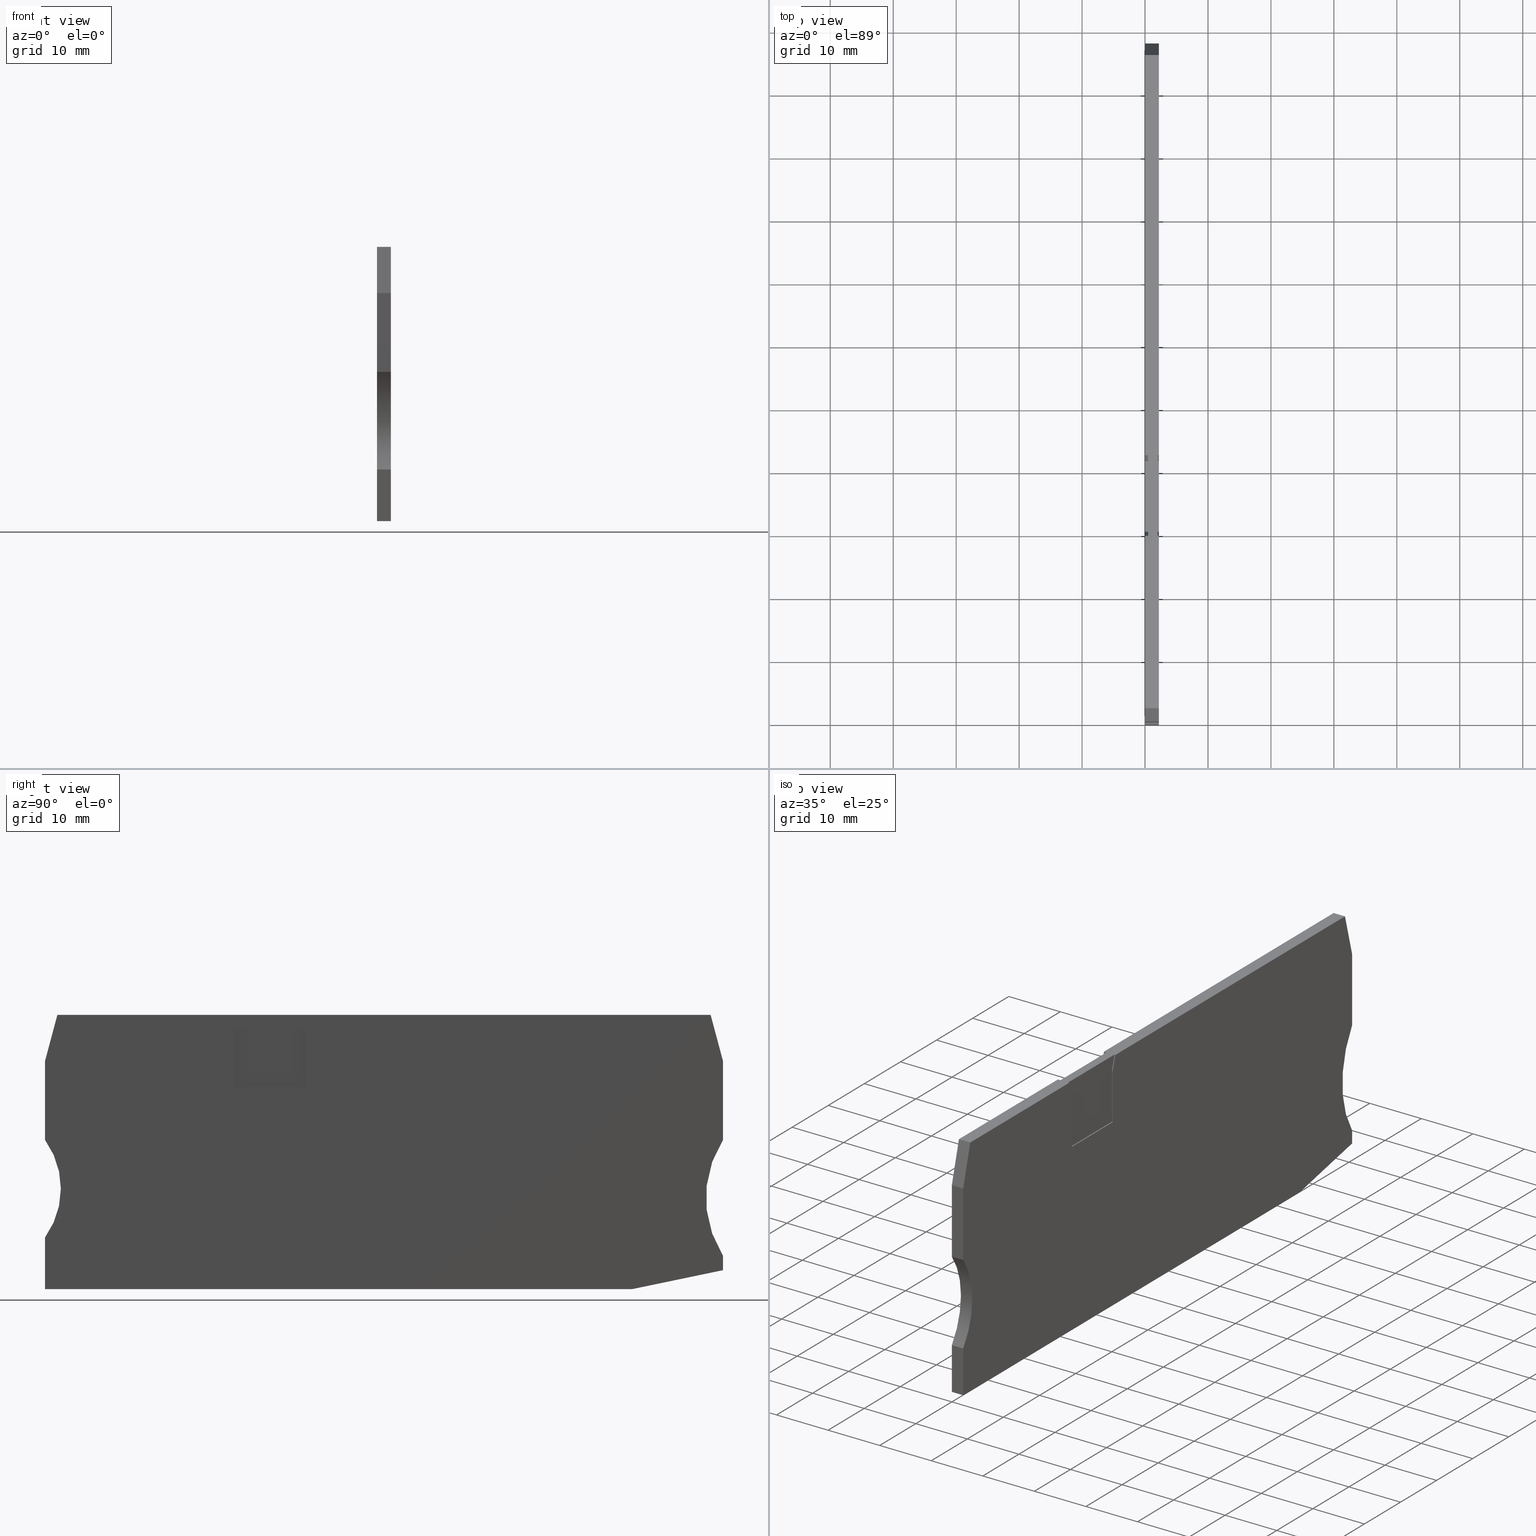
[diagram: canonical four-view strip — front | top / right | iso, engineering-drawing reading convention]
A machine part, canonical four-view strip (front | top / right | iso — engineering-drawing reading convention). The complete STEP part file that produces these views, byte-faithful:
ISO-10303-21;
HEADER;
FILE_DESCRIPTION(('Creo Elements/Direct Modeling STEP Export'),'2;1');
FILE_NAME(
'D:/temp/JobSpoolerServerData/JobServer Files/48308880-4516-4bf3-b92f-a7
795b20195e/work/output/model.stp','2018-04-16T 9:36:47',(''),(''),
'Creo Elements/Direct Modeling STEP processor for AP214 (Solid Model)',
'Creo Elements/Direct Modeling 18.1I  14-Aug-2016 (C) Parametric Technol
ogy GmbH','');
FILE_SCHEMA(('AUTOMOTIVE_DESIGN { 1 0 10303 214 1 1 1 1 }'));
ENDSEC;
DATA;
#10=CARTESIAN_POINT('',(-0.800000000000004,1.29999999999916,9.8));
#20=DIRECTION('',(-1.,0.,0.));
#30=DIRECTION('',(0.,-1.,0.));
#40=AXIS2_PLACEMENT_3D('',#10,#20,#30);
#50=PLANE('',#40);
#60=CARTESIAN_POINT('',(-0.800000000000004,21.9231577655584,
11.999999999999));
#70=DIRECTION('',(0.,1.,3.03161873061274E-15));
#80=VECTOR('',#70,1.);
#90=LINE('',#60,#80);
#100=CARTESIAN_POINT('',(-0.800000000000004,0.199999999999154,
11.9999999999989));
#110=VERTEX_POINT('',#100);
#120=CARTESIAN_POINT('',(-0.800000000000004,0.222246685659826,
11.9999999999989));
#130=VERTEX_POINT('',#120);
#140=EDGE_CURVE('',#110,#130,#90,.T.);
#150=ORIENTED_EDGE('',*,*,#140,.F.);
#160=CARTESIAN_POINT('',(-0.800000000000004,5.34999999999915,
20.0179106048135));
#170=DIRECTION('',(-1.,0.,0.));
#180=DIRECTION('',(0.,1.,0.));
#190=AXIS2_PLACEMENT_3D('',#160,#170,#180);
#200=CIRCLE('',#190,9.51739168677617);
#210=CARTESIAN_POINT('',(-0.800000000000003,0.199999999999154,
12.0142711501956));
#220=VERTEX_POINT('',#210);
#230=EDGE_CURVE('',#130,#220,#200,.T.);
#240=ORIENTED_EDGE('',*,*,#230,.F.);
#250=CARTESIAN_POINT('',(-0.800000000000004,0.199999999999154,12.));
#260=DIRECTION('',(0.,0.,1.));
#270=VECTOR('',#260,1.);
#280=LINE('',#250,#270);
#290=EDGE_CURVE('',#110,#220,#280,.T.);
#300=ORIENTED_EDGE('',*,*,#290,.T.);
#310=EDGE_LOOP('',(#300,#240,#150));
#320=FACE_OUTER_BOUND('',#310,.T.);
#330=ADVANCED_FACE('',(#320),#50,.T.);
#340=COLOUR_RGB('',0.560784339904785,0.588235318660736,0.600000023841858
);
#350=FILL_AREA_STYLE_COLOUR('',#340);
#360=FILL_AREA_STYLE('',(#350));
#370=SURFACE_STYLE_FILL_AREA(#360);
#380=SURFACE_SIDE_STYLE('',(#370));
#390=SURFACE_STYLE_USAGE(.BOTH.,#380);
#400=PRESENTATION_STYLE_ASSIGNMENT((#390));
#410=CARTESIAN_POINT('',(-13.050000000006,0.199999999999154,12.));
#420=DIRECTION('',(-0.,-1.,-0.));
#430=DIRECTION('',(-1.,0.,0.));
#440=AXIS2_PLACEMENT_3D('',#410,#420,#430);
#450=PLANE('',#440);
#460=CARTESIAN_POINT('',(-6.9708756914192,0.199999999999154,
11.999999999999));
#470=DIRECTION('',(1.,0.,-2.46209646432131E-14));
#480=VECTOR('',#470,1.);
#490=LINE('',#460,#480);
#500=CARTESIAN_POINT('',(-42.550000000006,0.199999999999154,
11.9999999999999));
#510=VERTEX_POINT('',#500);
#520=EDGE_CURVE('',#510,#110,#490,.T.);
#530=ORIENTED_EDGE('',*,*,#520,.F.);
#540=ORIENTED_EDGE('',*,*,#290,.F.);
#550=CARTESIAN_POINT('',(-0.249999999999947,0.199999999999154,
20.0179106048135));
#560=DIRECTION('',(0.,1.,0.));
#570=DIRECTION('',(1.,0.,0.));
#580=AXIS2_PLACEMENT_3D('',#550,#560,#570);
#590=CIRCLE('',#580,8.02251485006517);
#600=CARTESIAN_POINT('',(-0.52176102136936,0.200000000000884,
11.9999999999989));
#610=VERTEX_POINT('',#600);
#620=EDGE_CURVE('',#610,#220,#590,.T.);
#630=ORIENTED_EDGE('',*,*,#620,.T.);
#640=CARTESIAN_POINT('',(-6.9708756914192,0.199999999999154,
11.999999999999));
#650=DIRECTION('',(1.,7.41529250907751E-29,-2.46209646432131E-14));
#660=VECTOR('',#650,1.);
#670=LINE('',#640,#660);
#680=CARTESIAN_POINT('',(0.021761021369648,0.199999999999154,
11.9999999999989));
#690=VERTEX_POINT('',#680);
#700=EDGE_CURVE('',#610,#690,#670,.T.);
#710=ORIENTED_EDGE('',*,*,#700,.F.);
#720=CARTESIAN_POINT('',(0.299999999999997,0.199999999999154,
12.0142711501956));
#730=VERTEX_POINT('',#720);
#740=EDGE_CURVE('',#730,#690,#590,.T.);
#750=ORIENTED_EDGE('',*,*,#740,.T.);
#760=CARTESIAN_POINT('',(0.299999999999997,0.199999999999154,12.));
#770=DIRECTION('',(0.,0.,-1.));
#780=VECTOR('',#770,1.);
#790=LINE('',#760,#780);
#800=CARTESIAN_POINT('',(0.299999999999997,0.199999999999154,
11.9999999999989));
#810=VERTEX_POINT('',#800);
#820=EDGE_CURVE('',#730,#810,#790,.T.);
#830=ORIENTED_EDGE('',*,*,#820,.F.);
#840=CARTESIAN_POINT('',(-6.9708756914192,0.199999999999154,
11.999999999999));
#850=DIRECTION('',(1.,7.41529250907751E-29,-2.46209646432131E-14));
#860=VECTOR('',#850,1.);
#870=LINE('',#840,#860);
#880=CARTESIAN_POINT('',(50.7607405559825,0.199999999999154,
11.9999999999976));
#890=VERTEX_POINT('',#880);
#900=EDGE_CURVE('',#810,#890,#870,.T.);
#910=ORIENTED_EDGE('',*,*,#900,.F.);
#920=CARTESIAN_POINT('',(50.7607405559824,0.199999999999157,12.));
#930=DIRECTION('',(3.91594154607846E-14,0.,1.));
#940=VECTOR('',#930,1.);
#950=LINE('',#920,#940);
#960=CARTESIAN_POINT('',(50.7607405559826,0.199999999999154,9.8));
#970=VERTEX_POINT('',#960);
#980=EDGE_CURVE('',#970,#890,#950,.T.);
#990=ORIENTED_EDGE('',*,*,#980,.T.);
#1000=CARTESIAN_POINT('',(-6.9708756914192,0.199999999999154,9.8));
#1010=DIRECTION('',(-1.,0.,0.));
#1020=VECTOR('',#1010,1.);
#1030=LINE('',#1000,#1020);
#1040=CARTESIAN_POINT('',(-42.550000000006,0.199999999999154,9.8));
#1050=VERTEX_POINT('',#1040);
#1060=EDGE_CURVE('',#970,#1050,#1030,.T.);
#1070=ORIENTED_EDGE('',*,*,#1060,.F.);
#1080=CARTESIAN_POINT('',(-42.550000000006,0.199999999999154,12.));
#1090=DIRECTION('',(0.,0.,1.));
#1100=VECTOR('',#1090,1.);
#1110=LINE('',#1080,#1100);
#1120=EDGE_CURVE('',#1050,#510,#1110,.T.);
#1130=ORIENTED_EDGE('',*,*,#1120,.F.);
#1140=EDGE_LOOP('',(#1130,#1070,#990,#910,#830,#750,#710,#630,#540,#530)
);
#1150=FACE_OUTER_BOUND('',#1140,.T.);
#1160=ADVANCED_FACE('',(#1150),#450,.T.);
#1170=COLOUR_RGB('',0.560784339904785,0.588235318660736,
0.600000023841858);
#1180=FILL_AREA_STYLE_COLOUR('',#1170);
#1190=FILL_AREA_STYLE('',(#1180));
#1200=SURFACE_STYLE_FILL_AREA(#1190);
#1210=SURFACE_SIDE_STYLE('',(#1200));
#1220=SURFACE_STYLE_USAGE(.BOTH.,#1210);
#1230=PRESENTATION_STYLE_ASSIGNMENT((#1220));
#1240=CARTESIAN_POINT('',(-1.10000000000001,32.2810850143,9.8));
#1250=DIRECTION('',(-1.,0.,0.));
#1260=DIRECTION('',(0.,1.,0.));
#1270=AXIS2_PLACEMENT_3D('',#1240,#1250,#1260);
#1280=PLANE('',#1270);
#1290=CARTESIAN_POINT('',(-1.10000000000001,21.9231577655584,10.3));
#1300=DIRECTION('',(0.,-1.,0.));
#1310=VECTOR('',#1300,1.);
#1320=LINE('',#1290,#1310);
#1330=CARTESIAN_POINT('',(-1.10000000000001,41.1499999999992,10.3));
#1340=VERTEX_POINT('',#1330);
#1350=CARTESIAN_POINT('',(-1.10000000000001,32.2499999999992,10.3));
#1360=VERTEX_POINT('',#1350);
#1370=EDGE_CURVE('',#1340,#1360,#1320,.T.);
#1380=ORIENTED_EDGE('',*,*,#1370,.F.);
#1390=CARTESIAN_POINT('',(-1.10000000000001,32.2499999999992,12.));
#1400=DIRECTION('',(0.,0.,-1.));
#1410=VECTOR('',#1400,1.);
#1420=LINE('',#1390,#1410);
#1430=CARTESIAN_POINT('',(-1.10000000000001,32.2499999999992,9.8));
#1440=VERTEX_POINT('',#1430);
#1450=EDGE_CURVE('',#1360,#1440,#1420,.T.);
#1460=ORIENTED_EDGE('',*,*,#1450,.F.);
#1470=CARTESIAN_POINT('',(-1.10000000000001,21.9231577655584,9.8));
#1480=DIRECTION('',(0.,1.,0.));
#1490=VECTOR('',#1480,1.);
#1500=LINE('',#1470,#1490);
#1510=CARTESIAN_POINT('',(-1.10000000000001,41.1499999999991,9.8));
#1520=VERTEX_POINT('',#1510);
#1530=EDGE_CURVE('',#1440,#1520,#1500,.T.);
#1540=ORIENTED_EDGE('',*,*,#1530,.F.);
#1550=CARTESIAN_POINT('',(-1.10000000000001,41.1499999999992,12.));
#1560=DIRECTION('',(0.,0.,-1.));
#1570=VECTOR('',#1560,1.);
#1580=LINE('',#1550,#1570);
#1590=EDGE_CURVE('',#1340,#1520,#1580,.T.);
#1600=ORIENTED_EDGE('',*,*,#1590,.T.);
#1610=EDGE_LOOP('',(#1600,#1540,#1460,#1380));
#1620=FACE_OUTER_BOUND('',#1610,.T.);
#1630=ADVANCED_FACE('',(#1620),#1280,.T.);
#1640=COLOUR_RGB('',0.560784339904785,0.588235318660736,
0.600000023841858);
#1650=FILL_AREA_STYLE_COLOUR('',#1640);
#1660=FILL_AREA_STYLE('',(#1650));
#1670=SURFACE_STYLE_FILL_AREA(#1660);
#1680=SURFACE_SIDE_STYLE('',(#1670));
#1690=SURFACE_STYLE_USAGE(.BOTH.,#1680);
#1700=PRESENTATION_STYLE_ASSIGNMENT((#1690));
#1710=CARTESIAN_POINT('',(15.0816801231024,24.7352962716558,11.8));
#1720=DIRECTION('',(0.,0.,1.));
#1730=DIRECTION('',(1.,0.,0.));
#1740=AXIS2_PLACEMENT_3D('',#1710,#1720,#1730);
#1750=PLANE('',#1740);
#1760=CARTESIAN_POINT('',(-6.24339023168411,21.9231577655584,11.8));
#1770=DIRECTION('',(-0.258819045102521,-0.965925826289068,0.));
#1780=VECTOR('',#1770,1.);
#1790=LINE('',#1760,#1780);
#1800=CARTESIAN_POINT('',(-0.394905481644178,43.7499999999991,11.8));
#1810=VERTEX_POINT('',#1800);
#1820=CARTESIAN_POINT('',(-1.10000000000001,41.1185514333569,11.8));
#1830=VERTEX_POINT('',#1820);
#1840=EDGE_CURVE('',#1810,#1830,#1790,.T.);
#1850=ORIENTED_EDGE('',*,*,#1840,.F.);
#1860=CARTESIAN_POINT('',(-1.10000000000001,21.9231577655584,11.8));
#1870=DIRECTION('',(0.,1.,0.));
#1880=VECTOR('',#1870,1.);
#1890=LINE('',#1860,#1880);
#1900=CARTESIAN_POINT('',(-1.10000000000001,32.2499999999992,11.8));
#1910=VERTEX_POINT('',#1900);
#1920=EDGE_CURVE('',#1910,#1830,#1890,.T.);
#1930=ORIENTED_EDGE('',*,*,#1920,.T.);
#1940=CARTESIAN_POINT('',(-6.9708756914192,32.2499999999992,11.8));
#1950=DIRECTION('',(1.,0.,0.));
#1960=VECTOR('',#1950,1.);
#1970=LINE('',#1940,#1960);
#1980=CARTESIAN_POINT('',(-12.5,32.2499999999992,11.8));
#1990=VERTEX_POINT('',#1980);
#2000=EDGE_CURVE('',#1990,#1910,#1970,.T.);
#2010=ORIENTED_EDGE('',*,*,#2000,.T.);
#2020=CARTESIAN_POINT('',(-12.5,21.9231577655584,11.8));
#2030=DIRECTION('',(0.,-1.,0.));
#2040=VECTOR('',#2030,1.);
#2050=LINE('',#2020,#2040);
#2060=CARTESIAN_POINT('',(-12.5,41.1185514333569,11.8));
#2070=VERTEX_POINT('',#2060);
#2080=EDGE_CURVE('',#2070,#1990,#2050,.T.);
#2090=ORIENTED_EDGE('',*,*,#2080,.T.);
#2100=CARTESIAN_POINT('',(-7.35660976831577,21.9231577655584,11.8));
#2110=DIRECTION('',(-0.258819045102528,0.965925826289066,0.));
#2120=VECTOR('',#2110,1.);
#2130=LINE('',#2100,#2120);
#2140=CARTESIAN_POINT('',(-13.2050945183559,43.7499999999991,11.8));
#2150=VERTEX_POINT('',#2140);
#2160=EDGE_CURVE('',#2070,#2150,#2130,.T.);
#2170=ORIENTED_EDGE('',*,*,#2160,.F.);
#2180=CARTESIAN_POINT('',(-6.9708756914192,43.7499999999991,11.8));
#2190=DIRECTION('',(-1.,0.,0.));
#2200=VECTOR('',#2190,1.);
#2210=LINE('',#2180,#2200);
#2220=EDGE_CURVE('',#1810,#2150,#2210,.T.);
#2230=ORIENTED_EDGE('',*,*,#2220,.T.);
#2240=EDGE_LOOP('',(#2230,#2170,#2090,#2010,#1930,#1850));
#2250=FACE_OUTER_BOUND('',#2240,.T.);
#2260=ADVANCED_FACE('',(#2250),#1750,.T.);
#2270=COLOUR_RGB('',0.560784339904785,0.588235318660736,
0.600000023841858);
#2280=FILL_AREA_STYLE_COLOUR('',#2270);
#2290=FILL_AREA_STYLE('',(#2280));
#2300=SURFACE_STYLE_FILL_AREA(#2290);
#2310=SURFACE_SIDE_STYLE('',(#2300));
#2320=SURFACE_STYLE_USAGE(.BOTH.,#2310);
#2330=PRESENTATION_STYLE_ASSIGNMENT((#2320));
#2340=CARTESIAN_POINT('',(-0.249999999999947,5.34999999999915,
20.0179106048135));
#2350=DIRECTION('',(-6.61888889353023E-15,6.31722886912027E-16,-1.));
#2360=DIRECTION('',(-1.,-1.79149291388276E-31,6.61888889353023E-15));
#2370=AXIS2_PLACEMENT_3D('',#2340,#2350,#2360);
#2380=SPHERICAL_SURFACE('',#2370,9.5332704);
#2390=ORIENTED_EDGE('',*,*,#230,.T.);
#2400=CARTESIAN_POINT('',(-0.250000000000142,5.34999999999917,
11.9999999999989));
#2410=DIRECTION('',(2.46209646432131E-14,-3.03161873061274E-15,1.));
#2420=DIRECTION('',(-1.,0.,2.46209646432131E-14));
#2430=AXIS2_PLACEMENT_3D('',#2400,#2410,#2420);
#2440=CIRCLE('',#2430,5.15716531175005);
#2450=EDGE_CURVE('',#130,#610,#2440,.T.);
#2460=ORIENTED_EDGE('',*,*,#2450,.F.);
#2470=ORIENTED_EDGE('',*,*,#620,.F.);
#2480=EDGE_LOOP('',(#2470,#2460,#2390));
#2490=FACE_OUTER_BOUND('',#2480,.T.);
#2500=ADVANCED_FACE('',(#2490),#2380,.F.);
#2510=COLOUR_RGB('',0.560784339904785,0.588235318660736,
0.600000023841858);
#2520=FILL_AREA_STYLE_COLOUR('',#2510);
#2530=FILL_AREA_STYLE('',(#2520));
#2540=SURFACE_STYLE_FILL_AREA(#2530);
#2550=SURFACE_SIDE_STYLE('',(#2540));
#2560=SURFACE_STYLE_USAGE(.BOTH.,#2550);
#2570=PRESENTATION_STYLE_ASSIGNMENT((#2560));
#2580=CARTESIAN_POINT('',(-42.550000000006,36.3639756472453,12.));
#2590=DIRECTION('',(-1.,0.,0.));
#2600=DIRECTION('',(0.,1.,0.));
#2610=AXIS2_PLACEMENT_3D('',#2580,#2590,#2600);
#2620=PLANE('',#2610);
#2630=CARTESIAN_POINT('',(-42.550000000006,23.9000000000077,9.8));
#2640=DIRECTION('',(0.,0.,1.));
#2650=VECTOR('',#2640,1.);
#2660=LINE('',#2630,#2650);
#2670=CARTESIAN_POINT('',(-42.550000000006,23.9000000000077,9.8));
#2680=VERTEX_POINT('',#2670);
#2690=CARTESIAN_POINT('',(-42.550000000006,23.9000000000077,
12.0000000000002));
#2700=VERTEX_POINT('',#2690);
#2710=EDGE_CURVE('',#2680,#2700,#2660,.T.);
#2720=ORIENTED_EDGE('',*,*,#2710,.T.);
#2730=CARTESIAN_POINT('',(-42.550000000006,21.9231577655584,9.8));
#2740=DIRECTION('',(0.,1.,0.));
#2750=VECTOR('',#2740,1.);
#2760=LINE('',#2730,#2750);
#2770=CARTESIAN_POINT('',(-42.550000000006,36.4298018960399,9.8));
#2780=VERTEX_POINT('',#2770);
#2790=EDGE_CURVE('',#2680,#2780,#2760,.T.);
#2800=ORIENTED_EDGE('',*,*,#2790,.F.);
#2810=CARTESIAN_POINT('',(-42.550000000006,36.4298018960399,12.));
#2820=DIRECTION('',(0.,0.,1.));
#2830=VECTOR('',#2820,1.);
#2840=LINE('',#2810,#2830);
#2850=CARTESIAN_POINT('',(-42.550000000006,36.4298018960399,12.));
#2860=VERTEX_POINT('',#2850);
#2870=EDGE_CURVE('',#2780,#2860,#2840,.T.);
#2880=ORIENTED_EDGE('',*,*,#2870,.F.);
#2890=CARTESIAN_POINT('',(-42.550000000006,21.9231577655584,12.));
#2900=DIRECTION('',(0.,-1.,-3.03161873061274E-15));
#2910=VECTOR('',#2900,1.);
#2920=LINE('',#2890,#2910);
#2930=EDGE_CURVE('',#2860,#2700,#2920,.T.);
#2940=ORIENTED_EDGE('',*,*,#2930,.F.);
#2950=EDGE_LOOP('',(#2940,#2880,#2800,#2720));
#2960=FACE_OUTER_BOUND('',#2950,.T.);
#2970=ADVANCED_FACE('',(#2960),#2620,.T.);
#2980=COLOUR_RGB('',0.560784339904785,0.588235318660736,
0.600000023841858);
#2990=FILL_AREA_STYLE_COLOUR('',#2980);
#3000=FILL_AREA_STYLE('',(#2990));
#3010=SURFACE_STYLE_FILL_AREA(#3000);
#3020=SURFACE_SIDE_STYLE('',(#3010));
#3030=SURFACE_STYLE_USAGE(.BOTH.,#3020);
#3040=PRESENTATION_STYLE_ASSIGNMENT((#3030));
#3050=CARTESIAN_POINT('',(11.299999999997,0.749999999999154,9.8));
#3060=DIRECTION('',(0.,0.,-1.));
#3070=DIRECTION('',(-1.,0.,0.));
#3080=AXIS2_PLACEMENT_3D('',#3050,#3060,#3070);
#3090=PLANE('',#3080);
#3100=CARTESIAN_POINT('',(65.15,21.9231577655584,9.8));
#3110=DIRECTION('',(0.,-1.,0.));
#3120=VECTOR('',#3110,1.);
#3130=LINE('',#3100,#3120);
#3140=CARTESIAN_POINT('',(65.15,36.4298018960901,9.8));
#3150=VERTEX_POINT('',#3140);
#3160=CARTESIAN_POINT('',(65.15,23.8929320676267,9.8));
#3170=VERTEX_POINT('',#3160);
#3180=EDGE_CURVE('',#3150,#3170,#3130,.T.);
#3190=ORIENTED_EDGE('',*,*,#3180,.T.);
#3200=CARTESIAN_POINT('',(69.0370435796684,21.9231577655584,9.8));
#3210=DIRECTION('',(0.258819045102939,-0.965925826288956,0.));
#3220=VECTOR('',#3210,1.);
#3230=LINE('',#3200,#3220);
#3240=CARTESIAN_POINT('',(63.1885588296183,43.7499999999991,9.8));
#3250=VERTEX_POINT('',#3240);
#3260=EDGE_CURVE('',#3250,#3150,#3230,.T.);
#3270=ORIENTED_EDGE('',*,*,#3260,.T.);
#3280=CARTESIAN_POINT('',(-6.9708756914192,43.7499999999991,9.8));
#3290=DIRECTION('',(1.,0.,0.));
#3300=VECTOR('',#3290,1.);
#3310=LINE('',#3280,#3300);
#3320=CARTESIAN_POINT('',(-0.403332099679097,43.7499999999991,9.8));
#3330=VERTEX_POINT('',#3320);
#3340=EDGE_CURVE('',#3330,#3250,#3310,.T.);
#3350=ORIENTED_EDGE('',*,*,#3340,.T.);
#3360=CARTESIAN_POINT('',(-6.25181684971903,21.9231577655584,9.8));
#3370=DIRECTION('',(0.258819045102521,0.965925826289068,0.));
#3380=VECTOR('',#3370,1.);
#3390=LINE('',#3360,#3380);
#3400=EDGE_CURVE('',#1520,#3330,#3390,.T.);
#3410=ORIENTED_EDGE('',*,*,#3400,.T.);
#3420=ORIENTED_EDGE('',*,*,#1530,.T.);
#3430=CARTESIAN_POINT('',(-6.9708756914192,32.2499999999992,9.8));
#3440=DIRECTION('',(1.,0.,0.));
#3450=VECTOR('',#3440,1.);
#3460=LINE('',#3430,#3450);
#3470=CARTESIAN_POINT('',(-12.5,32.2499999999992,9.8));
#3480=VERTEX_POINT('',#3470);
#3490=EDGE_CURVE('',#3480,#1440,#3460,.T.);
#3500=ORIENTED_EDGE('',*,*,#3490,.T.);
#3510=CARTESIAN_POINT('',(-12.5,21.9231577655584,9.8));
#3520=DIRECTION('',(0.,-1.,0.));
#3530=VECTOR('',#3520,1.);
#3540=LINE('',#3510,#3530);
#3550=CARTESIAN_POINT('',(-12.5,41.1499999999991,9.8));
#3560=VERTEX_POINT('',#3550);
#3570=EDGE_CURVE('',#3560,#3480,#3540,.T.);
#3580=ORIENTED_EDGE('',*,*,#3570,.T.);
#3590=CARTESIAN_POINT('',(-7.34818315028085,21.9231577655584,9.8));
#3600=DIRECTION('',(0.258819045102528,-0.965925826289066,0.));
#3610=VECTOR('',#3600,1.);
#3620=LINE('',#3590,#3610);
#3630=CARTESIAN_POINT('',(-13.1966679003209,43.7499999999991,9.8));
#3640=VERTEX_POINT('',#3630);
#3650=EDGE_CURVE('',#3640,#3560,#3620,.T.);
#3660=ORIENTED_EDGE('',*,*,#3650,.T.);
#3670=CARTESIAN_POINT('',(-6.9708756914192,43.7499999999991,9.8));
#3680=DIRECTION('',(1.,0.,0.));
#3690=VECTOR('',#3680,1.);
#3700=LINE('',#3670,#3690);
#3710=CARTESIAN_POINT('',(-40.5885588295767,43.7499999999991,9.8));
#3720=VERTEX_POINT('',#3710);
#3730=EDGE_CURVE('',#3720,#3640,#3700,.T.);
#3740=ORIENTED_EDGE('',*,*,#3730,.T.);
#3750=CARTESIAN_POINT('',(-46.4370435797288,21.9231577655584,9.8));
#3760=DIRECTION('',(0.25881904510715,0.965925826287828,0.));
#3770=VECTOR('',#3760,1.);
#3780=LINE('',#3750,#3770);
#3790=EDGE_CURVE('',#2780,#3720,#3780,.T.);
#3800=ORIENTED_EDGE('',*,*,#3790,.T.);
#3810=ORIENTED_EDGE('',*,*,#2790,.T.);
#3820=CARTESIAN_POINT('',(-53.2353872180651,16.1499999999986,9.8));
#3830=DIRECTION('',(0.,0.,1.));
#3840=DIRECTION('',(1.,0.,0.));
#3850=AXIS2_PLACEMENT_3D('',#3820,#3830,#3840);
#3860=CIRCLE('',#3850,13.2);
#3870=CARTESIAN_POINT('',(-42.550000000006,8.39999999998958,9.8));
#3880=VERTEX_POINT('',#3870);
#3890=EDGE_CURVE('',#3880,#2680,#3860,.T.);
#3900=ORIENTED_EDGE('',*,*,#3890,.T.);
#3910=CARTESIAN_POINT('',(-42.550000000006,21.9231577655584,9.8));
#3920=DIRECTION('',(0.,1.,0.));
#3930=VECTOR('',#3920,1.);
#3940=LINE('',#3910,#3930);
#3950=EDGE_CURVE('',#1050,#3880,#3940,.T.);
#3960=ORIENTED_EDGE('',*,*,#3950,.T.);
#3970=ORIENTED_EDGE('',*,*,#1060,.T.);
#3980=CARTESIAN_POINT('',(-6.9708756914192,-11.8384387140237,9.8));
#3990=DIRECTION('',(-0.978943097300313,-0.20413331978898,0.));
#4000=VECTOR('',#3990,1.);
#4010=LINE('',#3980,#4000);
#4020=CARTESIAN_POINT('',(65.15,3.20050871977324,9.8));
#4030=VERTEX_POINT('',#4020);
#4040=EDGE_CURVE('',#4030,#970,#4010,.T.);
#4050=ORIENTED_EDGE('',*,*,#4040,.T.);
#4060=CARTESIAN_POINT('',(65.15,21.9231577655584,9.8));
#4070=DIRECTION('',(0.,-1.,0.));
#4080=VECTOR('',#4070,1.);
#4090=LINE('',#4060,#4080);
#4100=CARTESIAN_POINT('',(65.15,5.5070679323733,9.8));
#4110=VERTEX_POINT('',#4100);
#4120=EDGE_CURVE('',#4110,#4030,#4090,.T.);
#4130=ORIENTED_EDGE('',*,*,#4120,.T.);
#4140=CARTESIAN_POINT('',(79.4499999999999,14.7,9.8));
#4150=DIRECTION('',(0.,0.,1.));
#4160=DIRECTION('',(1.,0.,0.));
#4170=AXIS2_PLACEMENT_3D('',#4140,#4150,#4160);
#4180=CIRCLE('',#4170,16.9999999999999);
#4190=EDGE_CURVE('',#3170,#4110,#4180,.T.);
#4200=ORIENTED_EDGE('',*,*,#4190,.T.);
#4210=EDGE_LOOP('',(#4200,#4130,#4050,#3970,#3960,#3900,#3810,#3800,
#3740,#3660,#3580,#3500,#3420,#3410,#3350,#3270,#3190));
#4220=FACE_OUTER_BOUND('',#4210,.T.);
#4230=ADVANCED_FACE('',(#4220),#3090,.T.);
#4240=COLOUR_RGB('',0.560784339904785,0.588235318660736,
0.600000023841858);
#4250=FILL_AREA_STYLE_COLOUR('',#4240);
#4260=FILL_AREA_STYLE('',(#4250));
#4270=SURFACE_STYLE_FILL_AREA(#4260);
#4280=SURFACE_SIDE_STYLE('',(#4270));
#4290=SURFACE_STYLE_USAGE(.BOTH.,#4280);
#4300=PRESENTATION_STYLE_ASSIGNMENT((#4290));
#4310=CARTESIAN_POINT('',(0.299999999999997,5.34999999999915,
20.0179106048135));
#4320=DIRECTION('',(1.,0.,0.));
#4330=DIRECTION('',(0.,-1.,0.));
#4340=AXIS2_PLACEMENT_3D('',#4310,#4320,#4330);
#4350=CIRCLE('',#4340,9.51739168677618);
#4360=CARTESIAN_POINT('',(0.299999999999996,0.222246685659854,
11.9999999999989));
#4370=VERTEX_POINT('',#4360);
#4380=EDGE_CURVE('',#730,#4370,#4350,.T.);
#4390=ORIENTED_EDGE('',*,*,#4380,.T.);
#4400=ORIENTED_EDGE('',*,*,#740,.F.);
#4410=CARTESIAN_POINT('',(-0.250000000000142,5.34999999999917,
11.9999999999989));
#4420=DIRECTION('',(2.46209646432131E-14,-3.03161873061274E-15,1.));
#4430=DIRECTION('',(-1.,0.,2.46209646432131E-14));
#4440=AXIS2_PLACEMENT_3D('',#4410,#4420,#4430);
#4450=CIRCLE('',#4440,5.15716531175005);
#4460=EDGE_CURVE('',#690,#4370,#4450,.T.);
#4470=ORIENTED_EDGE('',*,*,#4460,.F.);
#4480=EDGE_LOOP('',(#4470,#4400,#4390));
#4490=FACE_OUTER_BOUND('',#4480,.T.);
#4500=ADVANCED_FACE('',(#4490),#2380,.F.);
#4510=COLOUR_RGB('',0.560784339904785,0.588235318660736,
0.600000023841858);
#4520=FILL_AREA_STYLE_COLOUR('',#4510);
#4530=FILL_AREA_STYLE('',(#4520));
#4540=SURFACE_STYLE_FILL_AREA(#4530);
#4550=SURFACE_SIDE_STYLE('',(#4540));
#4560=SURFACE_STYLE_USAGE(.BOTH.,#4550);
#4570=PRESENTATION_STYLE_ASSIGNMENT((#4560));
#4580=CARTESIAN_POINT('',(-1.2,40.7453463526,9.8));
#4590=DIRECTION('',(-0.965925826289068,0.258819045102521,0.));
#4600=DIRECTION('',(0.258819045102521,0.965925826289068,0.));
#4610=AXIS2_PLACEMENT_3D('',#4580,#4590,#4600);
#4620=PLANE('',#4610);
#4630=CARTESIAN_POINT('',(-6.24339023168411,21.9231577655584,
11.9999999999991));
#4640=DIRECTION('',(-0.258819045102521,-0.965925826289068,
3.44169137633799E-15));
#4650=VECTOR('',#4640,1.);
#4660=LINE('',#4630,#4650);
#4670=CARTESIAN_POINT('',(-0.394905481644173,43.7499999999991,
11.999999999999));
#4680=VERTEX_POINT('',#4670);
#4690=CARTESIAN_POINT('',(-1.10000000000001,41.1185514333568,
11.999999999999));
#4700=VERTEX_POINT('',#4690);
#4710=EDGE_CURVE('',#4680,#4700,#4660,.T.);
#4720=ORIENTED_EDGE('',*,*,#4710,.F.);
#4730=CARTESIAN_POINT('',(-1.10000000000002,41.1185514333568,12.));
#4740=DIRECTION('',(2.46209646432131E-14,9.18866909798281E-14,1.));
#4750=VECTOR('',#4740,1.);
#4760=LINE('',#4730,#4750);
#4770=EDGE_CURVE('',#1830,#4700,#4760,.T.);
#4780=ORIENTED_EDGE('',*,*,#4770,.T.);
#4790=ORIENTED_EDGE('',*,*,#1840,.T.);
#4800=CARTESIAN_POINT('',(-0.394905481644173,43.7499999999991,12.));
#4810=DIRECTION('',(2.54332844338398E-14,0.,1.));
#4820=VECTOR('',#4810,1.);
#4830=LINE('',#4800,#4820);
#4840=EDGE_CURVE('',#1810,#4680,#4830,.T.);
#4850=ORIENTED_EDGE('',*,*,#4840,.F.);
#4860=EDGE_LOOP('',(#4850,#4790,#4780,#4720));
#4870=FACE_OUTER_BOUND('',#4860,.T.);
#4880=ADVANCED_FACE('',(#4870),#4620,.T.);
#4890=COLOUR_RGB('',0.560784339904785,0.588235318660736,
0.600000023841858);
#4900=FILL_AREA_STYLE_COLOUR('',#4890);
#4910=FILL_AREA_STYLE('',(#4900));
#4920=SURFACE_STYLE_FILL_AREA(#4910);
#4930=SURFACE_SIDE_STYLE('',(#4920));
#4940=SURFACE_STYLE_USAGE(.BOTH.,#4930);
#4950=PRESENTATION_STYLE_ASSIGNMENT((#4940));
#4960=CARTESIAN_POINT('',(-13.2038475773202,43.7453463527,9.8));
#4970=DIRECTION('',(0.965925826289066,0.258819045102528,0.));
#4980=DIRECTION('',(0.258819045102528,-0.965925826289066,0.));
#4990=AXIS2_PLACEMENT_3D('',#4960,#4970,#4980);
#5000=PLANE('',#4990);
#5010=CARTESIAN_POINT('',(-12.5,41.1185514333569,12.));
#5020=DIRECTION('',(0.,-8.88550722492129E-14,-1.));
#5030=VECTOR('',#5020,1.);
#5040=LINE('',#5010,#5030);
#5050=CARTESIAN_POINT('',(-12.5,41.1185514333569,11.9999999999993));
#5060=VERTEX_POINT('',#5050);
#5070=EDGE_CURVE('',#5060,#2070,#5040,.T.);
#5080=ORIENTED_EDGE('',*,*,#5070,.T.);
#5090=CARTESIAN_POINT('',(-7.35660976831576,21.9231577655584,
11.9999999999991));
#5100=DIRECTION('',(-0.258819045102528,0.965925826289066,
9.33975119465913E-15));
#5110=VECTOR('',#5100,1.);
#5120=LINE('',#5090,#5110);
#5130=CARTESIAN_POINT('',(-13.2050945183559,43.7499999999991,
11.9999999999993));
#5140=VERTEX_POINT('',#5130);
#5150=EDGE_CURVE('',#5060,#5140,#5120,.T.);
#5160=ORIENTED_EDGE('',*,*,#5150,.F.);
#5170=CARTESIAN_POINT('',(-13.2050945183559,43.7499999999991,12.));
#5180=DIRECTION('',(8.12319790626774E-16,-3.03161873061274E-15,1.));
#5190=VECTOR('',#5180,1.);
#5200=LINE('',#5170,#5190);
#5210=EDGE_CURVE('',#2150,#5140,#5200,.T.);
#5220=ORIENTED_EDGE('',*,*,#5210,.T.);
#5230=ORIENTED_EDGE('',*,*,#2160,.T.);
#5240=EDGE_LOOP('',(#5230,#5220,#5160,#5080));
#5250=FACE_OUTER_BOUND('',#5240,.T.);
#5260=ADVANCED_FACE('',(#5250),#5000,.T.);
#5270=COLOUR_RGB('',0.560784339904785,0.588235318660736,
0.600000023841858);
#5280=FILL_AREA_STYLE_COLOUR('',#5270);
#5290=FILL_AREA_STYLE('',(#5280));
#5300=SURFACE_STYLE_FILL_AREA(#5290);
#5310=SURFACE_SIDE_STYLE('',(#5300));
#5320=SURFACE_STYLE_USAGE(.BOTH.,#5310);
#5330=PRESENTATION_STYLE_ASSIGNMENT((#5320));
#5340=CARTESIAN_POINT('',(-12.3,32.2499999999992,9.8));
#5350=DIRECTION('',(-0.,1.,0.));
#5360=DIRECTION('',(1.,0.,0.));
#5370=AXIS2_PLACEMENT_3D('',#5340,#5350,#5360);
#5380=PLANE('',#5370);
#5390=CARTESIAN_POINT('',(-12.5,32.2499999999992,12.));
#5400=DIRECTION('',(0.,0.,-1.));
#5410=VECTOR('',#5400,1.);
#5420=LINE('',#5390,#5410);
#5430=CARTESIAN_POINT('',(-12.5,32.2499999999992,10.3));
#5440=VERTEX_POINT('',#5430);
#5450=EDGE_CURVE('',#5440,#3480,#5420,.T.);
#5460=ORIENTED_EDGE('',*,*,#5450,.F.);
#5470=ORIENTED_EDGE('',*,*,#3490,.F.);
#5480=ORIENTED_EDGE('',*,*,#1450,.T.);
#5490=CARTESIAN_POINT('',(-6.9708756914192,32.2499999999992,10.3));
#5500=DIRECTION('',(-1.,0.,0.));
#5510=VECTOR('',#5500,1.);
#5520=LINE('',#5490,#5510);
#5530=EDGE_CURVE('',#1360,#5440,#5520,.T.);
#5540=ORIENTED_EDGE('',*,*,#5530,.F.);
#5550=EDGE_LOOP('',(#5540,#5480,#5470,#5460));
#5560=FACE_OUTER_BOUND('',#5550,.T.);
#5570=ADVANCED_FACE('',(#5560),#5380,.T.);
#5580=COLOUR_RGB('',0.560784339904785,0.588235318660736,
0.600000023841858);
#5590=FILL_AREA_STYLE_COLOUR('',#5580);
#5600=FILL_AREA_STYLE('',(#5590));
#5610=SURFACE_STYLE_FILL_AREA(#5600);
#5620=SURFACE_SIDE_STYLE('',(#5610));
#5630=SURFACE_STYLE_USAGE(.BOTH.,#5620);
#5640=PRESENTATION_STYLE_ASSIGNMENT((#5630));
#5650=CARTESIAN_POINT('',(65.15,36.3639756472962,9.8));
#5660=DIRECTION('',(1.,0.,0.));
#5670=DIRECTION('',(0.,-1.,0.));
#5680=AXIS2_PLACEMENT_3D('',#5650,#5660,#5670);
#5690=PLANE('',#5680);
#5700=CARTESIAN_POINT('',(65.15,23.8929320676267,9.8));
#5710=DIRECTION('',(0.,0.,-1.));
#5720=VECTOR('',#5710,1.);
#5730=LINE('',#5700,#5720);
#5740=CARTESIAN_POINT('',(65.15,23.8929320676267,11.999999999997));
#5750=VERTEX_POINT('',#5740);
#5760=EDGE_CURVE('',#5750,#3170,#5730,.T.);
#5770=ORIENTED_EDGE('',*,*,#5760,.T.);
#5780=CARTESIAN_POINT('',(65.15,21.9231577655584,11.9999999999973));
#5790=DIRECTION('',(0.,1.,3.03161873061274E-15));
#5800=VECTOR('',#5790,1.);
#5810=LINE('',#5780,#5800);
#5820=CARTESIAN_POINT('',(65.15,36.42980189609,11.9999999999974));
#5830=VERTEX_POINT('',#5820);
#5840=EDGE_CURVE('',#5750,#5830,#5810,.T.);
#5850=ORIENTED_EDGE('',*,*,#5840,.F.);
#5860=CARTESIAN_POINT('',(65.15,36.42980189609,12.));
#5870=DIRECTION('',(0.,0.,1.));
#5880=VECTOR('',#5870,1.);
#5890=LINE('',#5860,#5880);
#5900=EDGE_CURVE('',#3150,#5830,#5890,.T.);
#5910=ORIENTED_EDGE('',*,*,#5900,.T.);
#5920=ORIENTED_EDGE('',*,*,#3180,.F.);
#5930=EDGE_LOOP('',(#5920,#5910,#5850,#5770));
#5940=FACE_OUTER_BOUND('',#5930,.T.);
#5950=ADVANCED_FACE('',(#5940),#5690,.T.);
#5960=COLOUR_RGB('',0.560784339904785,0.588235318660736,
0.600000023841858);
#5970=FILL_AREA_STYLE_COLOUR('',#5960);
#5980=FILL_AREA_STYLE('',(#5970));
#5990=SURFACE_STYLE_FILL_AREA(#5980);
#6000=SURFACE_SIDE_STYLE('',(#5990));
#6010=SURFACE_STYLE_USAGE(.BOTH.,#6000);
#6020=PRESENTATION_STYLE_ASSIGNMENT((#6010));
#6030=CARTESIAN_POINT('',(64.4762208305536,3.06000946190722,9.8));
#6040=DIRECTION('',(0.20413331978898,-0.978943097300313,0.));
#6050=DIRECTION('',(0.978943097300313,0.20413331978898,0.));
#6060=AXIS2_PLACEMENT_3D('',#6030,#6040,#6050);
#6070=PLANE('',#6060);
#6080=CARTESIAN_POINT('',(65.15,3.20050871977323,12.));
#6090=DIRECTION('',(0.,0.,1.));
#6100=VECTOR('',#6090,1.);
#6110=LINE('',#6080,#6100);
#6120=CARTESIAN_POINT('',(65.15,3.20050871977324,11.9999999999973));
#6130=VERTEX_POINT('',#6120);
#6140=EDGE_CURVE('',#4030,#6130,#6110,.T.);
#6150=ORIENTED_EDGE('',*,*,#6140,.T.);
#6160=ORIENTED_EDGE('',*,*,#4040,.F.);
#6170=ORIENTED_EDGE('',*,*,#980,.F.);
#6180=CARTESIAN_POINT('',(-6.9708756914192,-11.8384387140237,
11.999999999999));
#6190=DIRECTION('',(0.978943097300313,0.20413331978898,
-2.34950947586299E-14));
#6200=VECTOR('',#6190,1.);
#6210=LINE('',#6180,#6200);
#6220=EDGE_CURVE('',#890,#6130,#6210,.T.);
#6230=ORIENTED_EDGE('',*,*,#6220,.F.);
#6240=EDGE_LOOP('',(#6230,#6170,#6160,#6150));
#6250=FACE_OUTER_BOUND('',#6240,.T.);
#6260=ADVANCED_FACE('',(#6250),#6070,.T.);
#6270=COLOUR_RGB('',0.560784339904785,0.588235318660736,
0.600000023841858);
#6280=FILL_AREA_STYLE_COLOUR('',#6270);
#6290=FILL_AREA_STYLE('',(#6280));
#6300=SURFACE_STYLE_FILL_AREA(#6290);
#6310=SURFACE_SIDE_STYLE('',(#6300));
#6320=SURFACE_STYLE_USAGE(.BOTH.,#6310);
#6330=PRESENTATION_STYLE_ASSIGNMENT((#6320));
#6340=CARTESIAN_POINT('',(-40.6878582487331,43.3794095225527,
-2.27499999999998));
#6350=DIRECTION('',(-0.965925826287828,0.25881904510715,0.));
#6360=DIRECTION('',(-0.25881904510715,-0.965925826287828,0.));
#6370=AXIS2_PLACEMENT_3D('',#6340,#6350,#6360);
#6380=PLANE('',#6370);
#6390=CARTESIAN_POINT('',(-40.5885588295767,43.7499999999991,12.));
#6400=DIRECTION('',(0.,0.,-1.));
#6410=VECTOR('',#6400,1.);
#6420=LINE('',#6390,#6410);
#6430=CARTESIAN_POINT('',(-40.5885588295767,43.7499999999991,12.));
#6440=VERTEX_POINT('',#6430);
#6450=EDGE_CURVE('',#6440,#3720,#6420,.T.);
#6460=ORIENTED_EDGE('',*,*,#6450,.T.);
#6470=CARTESIAN_POINT('',(-46.4370435797288,21.9231577655584,
12.0000000000001));
#6480=DIRECTION('',(-0.25881904510715,-0.965925826287828,
3.41393580072236E-15));
#6490=VECTOR('',#6480,1.);
#6500=LINE('',#6470,#6490);
#6510=EDGE_CURVE('',#6440,#2860,#6500,.T.);
#6520=ORIENTED_EDGE('',*,*,#6510,.F.);
#6530=ORIENTED_EDGE('',*,*,#2870,.T.);
#6540=ORIENTED_EDGE('',*,*,#3790,.F.);
#6550=EDGE_LOOP('',(#6540,#6530,#6520,#6460));
#6560=FACE_OUTER_BOUND('',#6550,.T.);
#6570=ADVANCED_FACE('',(#6560),#6380,.T.);
#6580=COLOUR_RGB('',0.560784339904785,0.588235318660736,
0.600000023841858);
#6590=FILL_AREA_STYLE_COLOUR('',#6580);
#6600=FILL_AREA_STYLE('',(#6590));
#6610=SURFACE_STYLE_FILL_AREA(#6600);
#6620=SURFACE_SIDE_STYLE('',(#6610));
#6630=SURFACE_STYLE_USAGE(.BOTH.,#6620);
#6640=PRESENTATION_STYLE_ASSIGNMENT((#6630));
#6650=CARTESIAN_POINT('',(-7.07087569141919,21.9278114128575,10.3));
#6660=DIRECTION('',(0.,0.,1.));
#6670=DIRECTION('',(1.,0.,0.));
#6680=AXIS2_PLACEMENT_3D('',#6650,#6660,#6670);
#6690=PLANE('',#6680);
#6700=CARTESIAN_POINT('',(-6.9708756914192,43.7499999999991,10.3));
#6710=DIRECTION('',(-1.,0.,0.));
#6720=VECTOR('',#6710,1.);
#6730=LINE('',#6700,#6720);
#6740=CARTESIAN_POINT('',(-0.403332099679094,43.7499999999991,10.3));
#6750=VERTEX_POINT('',#6740);
#6760=CARTESIAN_POINT('',(-13.1966679003209,43.7499999999991,10.3));
#6770=VERTEX_POINT('',#6760);
#6780=EDGE_CURVE('',#6750,#6770,#6730,.T.);
#6790=ORIENTED_EDGE('',*,*,#6780,.F.);
#6800=CARTESIAN_POINT('',(-7.34818315028085,21.9231577655584,10.3));
#6810=DIRECTION('',(-0.258819045102528,0.965925826289066,0.));
#6820=VECTOR('',#6810,1.);
#6830=LINE('',#6800,#6820);
#6840=CARTESIAN_POINT('',(-12.5,41.1499999999991,10.3));
#6850=VERTEX_POINT('',#6840);
#6860=EDGE_CURVE('',#6850,#6770,#6830,.T.);
#6870=ORIENTED_EDGE('',*,*,#6860,.T.);
#6880=CARTESIAN_POINT('',(-12.5,21.9231577655584,10.3));
#6890=DIRECTION('',(0.,1.,0.));
#6900=VECTOR('',#6890,1.);
#6910=LINE('',#6880,#6900);
#6920=EDGE_CURVE('',#5440,#6850,#6910,.T.);
#6930=ORIENTED_EDGE('',*,*,#6920,.T.);
#6940=ORIENTED_EDGE('',*,*,#5530,.T.);
#6950=ORIENTED_EDGE('',*,*,#1370,.T.);
#6960=CARTESIAN_POINT('',(-6.25181684971903,21.9231577655584,10.3));
#6970=DIRECTION('',(-0.258819045102521,-0.965925826289068,0.));
#6980=VECTOR('',#6970,1.);
#6990=LINE('',#6960,#6980);
#7000=EDGE_CURVE('',#6750,#1340,#6990,.T.);
#7010=ORIENTED_EDGE('',*,*,#7000,.T.);
#7020=EDGE_LOOP('',(#7010,#6950,#6940,#6930,#6870,#6790));
#7030=FACE_OUTER_BOUND('',#7020,.T.);
#7040=ADVANCED_FACE('',(#7030),#6690,.F.);
#7050=COLOUR_RGB('',0.560784339904785,0.588235318660736,
0.600000023841858);
#7060=FILL_AREA_STYLE_COLOUR('',#7050);
#7070=FILL_AREA_STYLE('',(#7060));
#7080=SURFACE_STYLE_FILL_AREA(#7070);
#7090=SURFACE_SIDE_STYLE('',(#7080));
#7100=SURFACE_STYLE_USAGE(.BOTH.,#7090);
#7110=PRESENTATION_STYLE_ASSIGNMENT((#7100));
#7120=CARTESIAN_POINT('',(-12.5,40.7453463526,9.8));
#7130=DIRECTION('',(1.,0.,0.));
#7140=DIRECTION('',(0.,-1.,0.));
#7150=AXIS2_PLACEMENT_3D('',#7120,#7130,#7140);
#7160=PLANE('',#7150);
#7170=CARTESIAN_POINT('',(-12.5,41.1499999999991,12.));
#7180=DIRECTION('',(0.,0.,1.));
#7190=VECTOR('',#7180,1.);
#7200=LINE('',#7170,#7190);
#7210=EDGE_CURVE('',#3560,#6850,#7200,.T.);
#7220=ORIENTED_EDGE('',*,*,#7210,.T.);
#7230=ORIENTED_EDGE('',*,*,#3570,.F.);
#7240=ORIENTED_EDGE('',*,*,#5450,.T.);
#7250=ORIENTED_EDGE('',*,*,#6920,.F.);
#7260=EDGE_LOOP('',(#7250,#7240,#7230,#7220));
#7270=FACE_OUTER_BOUND('',#7260,.T.);
#7280=ADVANCED_FACE('',(#7270),#7160,.T.);
#7290=COLOUR_RGB('',0.560784339904785,0.588235318660736,
0.600000023841858);
#7300=FILL_AREA_STYLE_COLOUR('',#7290);
#7310=FILL_AREA_STYLE('',(#7300));
#7320=SURFACE_STYLE_FILL_AREA(#7310);
#7330=SURFACE_SIDE_STYLE('',(#7320));
#7340=SURFACE_STYLE_USAGE(.BOTH.,#7330);
#7350=PRESENTATION_STYLE_ASSIGNMENT((#7340));
#7360=CARTESIAN_POINT('',(-42.550000000006,2.19999999999915,9.8));
#7370=DIRECTION('',(-1.,0.,0.));
#7380=DIRECTION('',(0.,1.,0.));
#7390=AXIS2_PLACEMENT_3D('',#7360,#7370,#7380);
#7400=PLANE('',#7390);
#7410=CARTESIAN_POINT('',(-42.550000000006,21.9231577655584,12.));
#7420=DIRECTION('',(0.,-1.,-3.03161873061274E-15));
#7430=VECTOR('',#7420,1.);
#7440=LINE('',#7410,#7430);
#7450=CARTESIAN_POINT('',(-42.550000000006,8.39999999998958,
12.0000000000002));
#7460=VERTEX_POINT('',#7450);
#7470=EDGE_CURVE('',#7460,#510,#7440,.T.);
#7480=ORIENTED_EDGE('',*,*,#7470,.F.);
#7490=ORIENTED_EDGE('',*,*,#1120,.T.);
#7500=ORIENTED_EDGE('',*,*,#3950,.F.);
#7510=CARTESIAN_POINT('',(-42.550000000006,8.39999999998958,9.8));
#7520=DIRECTION('',(0.,0.,1.));
#7530=VECTOR('',#7520,1.);
#7540=LINE('',#7510,#7530);
#7550=EDGE_CURVE('',#3880,#7460,#7540,.T.);
#7560=ORIENTED_EDGE('',*,*,#7550,.F.);
#7570=EDGE_LOOP('',(#7560,#7500,#7490,#7480));
#7580=FACE_OUTER_BOUND('',#7570,.T.);
#7590=ADVANCED_FACE('',(#7580),#7400,.T.);
#7600=COLOUR_RGB('',0.560784339904785,0.588235318660736,
0.600000023841858);
#7610=FILL_AREA_STYLE_COLOUR('',#7600);
#7620=FILL_AREA_STYLE('',(#7610));
#7630=SURFACE_STYLE_FILL_AREA(#7620);
#7640=SURFACE_SIDE_STYLE('',(#7630));
#7650=SURFACE_STYLE_USAGE(.BOTH.,#7640);
#7660=PRESENTATION_STYLE_ASSIGNMENT((#7650));
#7670=CARTESIAN_POINT('',(-1.20000000000001,40.7767949192423,9.8));
#7680=DIRECTION('',(-0.965925826289068,0.258819045102521,0.));
#7690=DIRECTION('',(0.258819045102521,0.965925826289068,0.));
#7700=AXIS2_PLACEMENT_3D('',#7670,#7680,#7690);
#7710=PLANE('',#7700);
#7720=ORIENTED_EDGE('',*,*,#1590,.F.);
#7730=ORIENTED_EDGE('',*,*,#3400,.F.);
#7740=CARTESIAN_POINT('',(-0.403332099679096,43.7499999999991,12.));
#7750=DIRECTION('',(0.,0.,1.));
#7760=VECTOR('',#7750,1.);
#7770=LINE('',#7740,#7760);
#7780=EDGE_CURVE('',#3330,#6750,#7770,.T.);
#7790=ORIENTED_EDGE('',*,*,#7780,.F.);
#7800=ORIENTED_EDGE('',*,*,#7000,.F.);
#7810=EDGE_LOOP('',(#7800,#7790,#7730,#7720));
#7820=FACE_OUTER_BOUND('',#7810,.T.);
#7830=ADVANCED_FACE('',(#7820),#7710,.T.);
#7840=COLOUR_RGB('',0.560784339904785,0.588235318660736,
0.600000023841858);
#7850=FILL_AREA_STYLE_COLOUR('',#7840);
#7860=FILL_AREA_STYLE('',(#7850));
#7870=SURFACE_STYLE_FILL_AREA(#7860);
#7880=SURFACE_SIDE_STYLE('',(#7870));
#7890=SURFACE_STYLE_USAGE(.BOTH.,#7880);
#7900=PRESENTATION_STYLE_ASSIGNMENT((#7890));
#7910=CARTESIAN_POINT('',(-13.1966679003209,43.7499999999991,10.3));
#7920=DIRECTION('',(0.,1.,-0.));
#7930=DIRECTION('',(-1.,0.,0.));
#7940=AXIS2_PLACEMENT_3D('',#7910,#7920,#7930);
#7950=PLANE('',#7940);
#7960=ORIENTED_EDGE('',*,*,#3730,.F.);
#7970=CARTESIAN_POINT('',(-13.1966679003209,43.7499999999991,12.));
#7980=DIRECTION('',(0.,0.,-1.));
#7990=VECTOR('',#7980,1.);
#8000=LINE('',#7970,#7990);
#8010=EDGE_CURVE('',#6770,#3640,#8000,.T.);
#8020=ORIENTED_EDGE('',*,*,#8010,.T.);
#8030=ORIENTED_EDGE('',*,*,#6780,.T.);
#8040=ORIENTED_EDGE('',*,*,#7780,.T.);
#8050=ORIENTED_EDGE('',*,*,#3340,.F.);
#8060=CARTESIAN_POINT('',(63.1885588296183,43.7499999999991,12.));
#8070=DIRECTION('',(0.,0.,1.));
#8080=VECTOR('',#8070,1.);
#8090=LINE('',#8060,#8080);
#8100=CARTESIAN_POINT('',(63.1885588296183,43.7499999999991,
11.9999999999974));
#8110=VERTEX_POINT('',#8100);
#8120=EDGE_CURVE('',#3250,#8110,#8090,.T.);
#8130=ORIENTED_EDGE('',*,*,#8120,.F.);
#8140=CARTESIAN_POINT('',(-6.9708756914192,43.7499999999991,
11.9999999999992));
#8150=DIRECTION('',(-1.,0.,2.46209646432131E-14));
#8160=VECTOR('',#8150,1.);
#8170=LINE('',#8140,#8160);
#8180=EDGE_CURVE('',#8110,#4680,#8170,.T.);
#8190=ORIENTED_EDGE('',*,*,#8180,.F.);
#8200=ORIENTED_EDGE('',*,*,#4840,.T.);
#8210=ORIENTED_EDGE('',*,*,#2220,.F.);
#8220=ORIENTED_EDGE('',*,*,#5210,.F.);
#8230=CARTESIAN_POINT('',(-6.9708756914192,43.7499999999991,
11.9999999999992));
#8240=DIRECTION('',(-1.,0.,2.46209646432131E-14));
#8250=VECTOR('',#8240,1.);
#8260=LINE('',#8230,#8250);
#8270=EDGE_CURVE('',#5140,#6440,#8260,.T.);
#8280=ORIENTED_EDGE('',*,*,#8270,.F.);
#8290=ORIENTED_EDGE('',*,*,#6450,.F.);
#8300=EDGE_LOOP('',(#8290,#8280,#8220,#8210,#8200,#8190,#8130,#8050,
#8040,#8030,#8020,#7960));
#8310=FACE_OUTER_BOUND('',#8300,.T.);
#8320=ADVANCED_FACE('',(#8310),#7950,.T.);
#8330=COLOUR_RGB('',0.560784339904785,0.588235318660736,
0.600000023841858);
#8340=FILL_AREA_STYLE_COLOUR('',#8330);
#8350=FILL_AREA_STYLE('',(#8340));
#8360=SURFACE_STYLE_FILL_AREA(#8350);
#8370=SURFACE_SIDE_STYLE('',(#8360));
#8380=SURFACE_STYLE_USAGE(.BOTH.,#8370);
#8390=PRESENTATION_STYLE_ASSIGNMENT((#8380));
#8400=CARTESIAN_POINT('',(13.190775127877,22.9303289999949,
11.9999999999986));
#8410=DIRECTION('',(2.46209646432131E-14,-3.03161873061274E-15,1.));
#8420=DIRECTION('',(1.,-1.94289029309405E-15,-2.46209646432131E-14));
#8430=AXIS2_PLACEMENT_3D('',#8400,#8410,#8420);
#8440=PLANE('',#8430);
#8450=CARTESIAN_POINT('',(79.4499999999999,14.7,11.999999999997));
#8460=DIRECTION('',(0.,0.,1.));
#8470=DIRECTION('',(1.,0.,0.));
#8480=AXIS2_PLACEMENT_3D('',#8450,#8460,#8470);
#8490=CIRCLE('',#8480,16.9999999999999);
#8500=CARTESIAN_POINT('',(65.15,5.5070679323733,11.999999999997));
#8510=VERTEX_POINT('',#8500);
#8520=EDGE_CURVE('',#5750,#8510,#8490,.T.);
#8530=ORIENTED_EDGE('',*,*,#8520,.F.);
#8540=CARTESIAN_POINT('',(65.15,21.9231577655584,11.9999999999973));
#8550=DIRECTION('',(0.,1.,3.03161873061274E-15));
#8560=VECTOR('',#8550,1.);
#8570=LINE('',#8540,#8560);
#8580=EDGE_CURVE('',#6130,#8510,#8570,.T.);
#8590=ORIENTED_EDGE('',*,*,#8580,.T.);
#8600=ORIENTED_EDGE('',*,*,#6220,.T.);
#8610=ORIENTED_EDGE('',*,*,#900,.T.);
#8620=CARTESIAN_POINT('',(0.299999999999997,21.9231577655584,
11.9999999999989));
#8630=DIRECTION('',(0.,-1.,-3.03161873061274E-15));
#8640=VECTOR('',#8630,1.);
#8650=LINE('',#8620,#8640);
#8660=EDGE_CURVE('',#4370,#810,#8650,.T.);
#8670=ORIENTED_EDGE('',*,*,#8660,.T.);
#8680=ORIENTED_EDGE('',*,*,#4460,.T.);
#8690=ORIENTED_EDGE('',*,*,#700,.T.);
#8700=ORIENTED_EDGE('',*,*,#2450,.T.);
#8710=ORIENTED_EDGE('',*,*,#140,.T.);
#8720=ORIENTED_EDGE('',*,*,#520,.T.);
#8730=ORIENTED_EDGE('',*,*,#7470,.T.);
#8740=CARTESIAN_POINT('',(-53.2353872180651,16.1499999999986,
12.0000000000002));
#8750=DIRECTION('',(0.,0.,1.));
#8760=DIRECTION('',(1.,0.,0.));
#8770=AXIS2_PLACEMENT_3D('',#8740,#8750,#8760);
#8780=CIRCLE('',#8770,13.2);
#8790=EDGE_CURVE('',#7460,#2700,#8780,.T.);
#8800=ORIENTED_EDGE('',*,*,#8790,.F.);
#8810=ORIENTED_EDGE('',*,*,#2930,.T.);
#8820=ORIENTED_EDGE('',*,*,#6510,.T.);
#8830=ORIENTED_EDGE('',*,*,#8270,.T.);
#8840=ORIENTED_EDGE('',*,*,#5150,.T.);
#8850=CARTESIAN_POINT('',(-12.5,21.9231577655584,11.9999999999992));
#8860=DIRECTION('',(0.,1.,3.03161873061274E-15));
#8870=VECTOR('',#8860,1.);
#8880=LINE('',#8850,#8870);
#8890=CARTESIAN_POINT('',(-12.5,32.2499999999992,11.9999999999993));
#8900=VERTEX_POINT('',#8890);
#8910=EDGE_CURVE('',#8900,#5060,#8880,.T.);
#8920=ORIENTED_EDGE('',*,*,#8910,.T.);
#8930=CARTESIAN_POINT('',(-6.9708756914192,32.2499999999992,
11.9999999999991));
#8940=DIRECTION('',(-1.,0.,2.46209646432131E-14));
#8950=VECTOR('',#8940,1.);
#8960=LINE('',#8930,#8950);
#8970=CARTESIAN_POINT('',(-1.10000000000001,32.2499999999992,
11.999999999999));
#8980=VERTEX_POINT('',#8970);
#8990=EDGE_CURVE('',#8980,#8900,#8960,.T.);
#9000=ORIENTED_EDGE('',*,*,#8990,.T.);
#9010=CARTESIAN_POINT('',(-1.10000000000001,21.9231577655584,
11.999999999999));
#9020=DIRECTION('',(0.,-1.,-3.03161873061274E-15));
#9030=VECTOR('',#9020,1.);
#9040=LINE('',#9010,#9030);
#9050=EDGE_CURVE('',#4700,#8980,#9040,.T.);
#9060=ORIENTED_EDGE('',*,*,#9050,.T.);
#9070=ORIENTED_EDGE('',*,*,#4710,.T.);
#9080=ORIENTED_EDGE('',*,*,#8180,.T.);
#9090=CARTESIAN_POINT('',(69.0370435796684,21.9231577655584,
11.9999999999972));
#9100=DIRECTION('',(-0.258819045102939,0.965925826288956,
9.32587340685131E-15));
#9110=VECTOR('',#9100,1.);
#9120=LINE('',#9090,#9110);
#9130=EDGE_CURVE('',#5830,#8110,#9120,.T.);
#9140=ORIENTED_EDGE('',*,*,#9130,.T.);
#9150=ORIENTED_EDGE('',*,*,#5840,.T.);
#9160=EDGE_LOOP('',(#9150,#9140,#9080,#9070,#9060,#9000,#8920,#8840,
#8830,#8820,#8810,#8800,#8730,#8720,#8710,#8700,#8690,#8680,#8670,#8610,
#8600,#8590,#8530));
#9170=FACE_OUTER_BOUND('',#9160,.T.);
#9180=ADVANCED_FACE('',(#9170),#8440,.T.);
#9190=COLOUR_RGB('',0.560784339904785,0.588235318660736,
0.600000023841858);
#9200=FILL_AREA_STYLE_COLOUR('',#9190);
#9210=FILL_AREA_STYLE('',(#9200));
#9220=SURFACE_STYLE_FILL_AREA(#9210);
#9230=SURFACE_SIDE_STYLE('',(#9220));
#9240=SURFACE_STYLE_USAGE(.BOTH.,#9230);
#9250=PRESENTATION_STYLE_ASSIGNMENT((#9240));
#9260=CARTESIAN_POINT('',(79.4499999999999,14.7,9.8));
#9270=DIRECTION('',(0.,0.,1.));
#9280=DIRECTION('',(1.,0.,0.));
#9290=AXIS2_PLACEMENT_3D('',#9260,#9270,#9280);
#9300=CYLINDRICAL_SURFACE('',#9290,16.9999999999999);
#9310=ORIENTED_EDGE('',*,*,#4190,.F.);
#9320=CARTESIAN_POINT('',(65.15,5.5070679323733,9.8));
#9330=DIRECTION('',(0.,0.,-1.));
#9340=VECTOR('',#9330,1.);
#9350=LINE('',#9320,#9340);
#9360=EDGE_CURVE('',#8510,#4110,#9350,.T.);
#9370=ORIENTED_EDGE('',*,*,#9360,.T.);
#9380=ORIENTED_EDGE('',*,*,#8520,.T.);
#9390=ORIENTED_EDGE('',*,*,#5760,.F.);
#9400=EDGE_LOOP('',(#9390,#9380,#9370,#9310));
#9410=FACE_OUTER_BOUND('',#9400,.T.);
#9420=ADVANCED_FACE('',(#9410),#9300,.F.);
#9430=COLOUR_RGB('',0.560784339904785,0.588235318660736,
0.600000023841858);
#9440=FILL_AREA_STYLE_COLOUR('',#9430);
#9450=FILL_AREA_STYLE('',(#9440));
#9460=SURFACE_STYLE_FILL_AREA(#9450);
#9470=SURFACE_SIDE_STYLE('',(#9460));
#9480=SURFACE_STYLE_USAGE(.BOTH.,#9470);
#9490=PRESENTATION_STYLE_ASSIGNMENT((#9480));
#9500=CARTESIAN_POINT('',(65.15,4.19999999999915,12.));
#9510=DIRECTION('',(1.,0.,0.));
#9520=DIRECTION('',(0.,-1.,0.));
#9530=AXIS2_PLACEMENT_3D('',#9500,#9510,#9520);
#9540=PLANE('',#9530);
#9550=ORIENTED_EDGE('',*,*,#4120,.F.);
#9560=ORIENTED_EDGE('',*,*,#6140,.F.);
#9570=ORIENTED_EDGE('',*,*,#8580,.F.);
#9580=ORIENTED_EDGE('',*,*,#9360,.F.);
#9590=EDGE_LOOP('',(#9580,#9570,#9560,#9550));
#9600=FACE_OUTER_BOUND('',#9590,.T.);
#9610=ADVANCED_FACE('',(#9600),#9540,.T.);
#9620=COLOUR_RGB('',0.560784339904785,0.588235318660736,
0.600000023841858);
#9630=FILL_AREA_STYLE_COLOUR('',#9620);
#9640=FILL_AREA_STYLE('',(#9630));
#9650=SURFACE_STYLE_FILL_AREA(#9640);
#9660=SURFACE_SIDE_STYLE('',(#9650));
#9670=SURFACE_STYLE_USAGE(.BOTH.,#9660);
#9680=PRESENTATION_STYLE_ASSIGNMENT((#9670));
#9690=CARTESIAN_POINT('',(-1.10000000000001,32.2810850143,12.));
#9700=DIRECTION('',(1.,0.,0.));
#9710=DIRECTION('',(0.,-1.,0.));
#9720=AXIS2_PLACEMENT_3D('',#9690,#9700,#9710);
#9730=PLANE('',#9720);
#9740=CARTESIAN_POINT('',(-1.10000000000001,32.2499999999992,12.));
#9750=DIRECTION('',(0.,0.,1.));
#9760=VECTOR('',#9750,1.);
#9770=LINE('',#9740,#9760);
#9780=EDGE_CURVE('',#1910,#8980,#9770,.T.);
#9790=ORIENTED_EDGE('',*,*,#9780,.T.);
#9800=ORIENTED_EDGE('',*,*,#1920,.F.);
#9810=ORIENTED_EDGE('',*,*,#4770,.F.);
#9820=ORIENTED_EDGE('',*,*,#9050,.F.);
#9830=EDGE_LOOP('',(#9820,#9810,#9800,#9790));
#9840=FACE_OUTER_BOUND('',#9830,.T.);
#9850=ADVANCED_FACE('',(#9840),#9730,.F.);
#9860=COLOUR_RGB('',0.560784339904785,0.588235318660736,
0.600000023841858);
#9870=FILL_AREA_STYLE_COLOUR('',#9860);
#9880=FILL_AREA_STYLE('',(#9870));
#9890=SURFACE_STYLE_FILL_AREA(#9880);
#9900=SURFACE_SIDE_STYLE('',(#9890));
#9910=SURFACE_STYLE_USAGE(.BOTH.,#9900);
#9920=PRESENTATION_STYLE_ASSIGNMENT((#9910));
#9930=CARTESIAN_POINT('',(0.299999999999997,11.2749999999992,9.8));
#9940=DIRECTION('',(1.,0.,0.));
#9950=DIRECTION('',(0.,1.,0.));
#9960=AXIS2_PLACEMENT_3D('',#9930,#9940,#9950);
#9970=PLANE('',#9960);
#9980=ORIENTED_EDGE('',*,*,#820,.T.);
#9990=ORIENTED_EDGE('',*,*,#4380,.F.);
#10000=ORIENTED_EDGE('',*,*,#8660,.F.);
#10010=EDGE_LOOP('',(#10000,#9990,#9980));
#10020=FACE_OUTER_BOUND('',#10010,.T.);
#10030=ADVANCED_FACE('',(#10020),#9970,.T.);
#10040=COLOUR_RGB('',0.560784339904785,0.588235318660736,
0.600000023841858);
#10050=FILL_AREA_STYLE_COLOUR('',#10040);
#10060=FILL_AREA_STYLE('',(#10050));
#10070=SURFACE_STYLE_FILL_AREA(#10060);
#10080=SURFACE_SIDE_STYLE('',(#10070));
#10090=SURFACE_STYLE_USAGE(.BOTH.,#10080);
#10100=PRESENTATION_STYLE_ASSIGNMENT((#10090));
#10110=CARTESIAN_POINT('',(-12.5,32.2499999999992,12.));
#10120=DIRECTION('',(-0.,-1.,-0.));
#10130=DIRECTION('',(-1.,0.,0.));
#10140=AXIS2_PLACEMENT_3D('',#10110,#10120,#10130);
#10150=PLANE('',#10140);
#10160=ORIENTED_EDGE('',*,*,#8990,.F.);
#10170=CARTESIAN_POINT('',(-12.5,32.2499999999992,12.));
#10180=DIRECTION('',(0.,0.,1.));
#10190=VECTOR('',#10180,1.);
#10200=LINE('',#10170,#10190);
#10210=EDGE_CURVE('',#1990,#8900,#10200,.T.);
#10220=ORIENTED_EDGE('',*,*,#10210,.T.);
#10230=ORIENTED_EDGE('',*,*,#2000,.F.);
#10240=ORIENTED_EDGE('',*,*,#9780,.F.);
#10250=EDGE_LOOP('',(#10240,#10230,#10220,#10160));
#10260=FACE_OUTER_BOUND('',#10250,.T.);
#10270=ADVANCED_FACE('',(#10260),#10150,.F.);
#10280=COLOUR_RGB('',0.560784339904785,0.588235318660736,
0.600000023841858);
#10290=FILL_AREA_STYLE_COLOUR('',#10280);
#10300=FILL_AREA_STYLE('',(#10290));
#10310=SURFACE_STYLE_FILL_AREA(#10300);
#10320=SURFACE_SIDE_STYLE('',(#10310));
#10330=SURFACE_STYLE_USAGE(.BOTH.,#10320);
#10340=PRESENTATION_STYLE_ASSIGNMENT((#10330));
#10350=CARTESIAN_POINT('',(-13.2038475773202,43.7767949193423,9.8));
#10360=DIRECTION('',(0.965925826289066,0.258819045102528,0.));
#10370=DIRECTION('',(0.258819045102528,-0.965925826289066,0.));
#10380=AXIS2_PLACEMENT_3D('',#10350,#10360,#10370);
#10390=PLANE('',#10380);
#10400=ORIENTED_EDGE('',*,*,#8010,.F.);
#10410=ORIENTED_EDGE('',*,*,#3650,.F.);
#10420=ORIENTED_EDGE('',*,*,#7210,.F.);
#10430=ORIENTED_EDGE('',*,*,#6860,.F.);
#10440=EDGE_LOOP('',(#10430,#10420,#10410,#10400));
#10450=FACE_OUTER_BOUND('',#10440,.T.);
#10460=ADVANCED_FACE('',(#10450),#10390,.T.);
#10470=COLOUR_RGB('',0.560784339904785,0.588235318660736,
0.600000023841858);
#10480=FILL_AREA_STYLE_COLOUR('',#10470);
#10490=FILL_AREA_STYLE('',(#10480));
#10500=SURFACE_STYLE_FILL_AREA(#10490);
#10510=SURFACE_SIDE_STYLE('',(#10500));
#10520=SURFACE_STYLE_USAGE(.BOTH.,#10510);
#10530=PRESENTATION_STYLE_ASSIGNMENT((#10520));
#10540=CARTESIAN_POINT('',(65.1329629131445,36.4933851698476,12.));
#10550=DIRECTION('',(0.965925826288956,0.258819045102939,0.));
#10560=DIRECTION('',(0.258819045102939,-0.965925826288956,0.));
#10570=AXIS2_PLACEMENT_3D('',#10540,#10550,#10560);
#10580=PLANE('',#10570);
#10590=ORIENTED_EDGE('',*,*,#9130,.F.);
#10600=ORIENTED_EDGE('',*,*,#8120,.T.);
#10610=ORIENTED_EDGE('',*,*,#3260,.F.);
#10620=ORIENTED_EDGE('',*,*,#5900,.F.);
#10630=EDGE_LOOP('',(#10620,#10610,#10600,#10590));
#10640=FACE_OUTER_BOUND('',#10630,.T.);
#10650=ADVANCED_FACE('',(#10640),#10580,.T.);
#10660=COLOUR_RGB('',0.560784339904785,0.588235318660736,
0.600000023841858);
#10670=FILL_AREA_STYLE_COLOUR('',#10660);
#10680=FILL_AREA_STYLE('',(#10670));
#10690=SURFACE_STYLE_FILL_AREA(#10680);
#10700=SURFACE_SIDE_STYLE('',(#10690));
#10710=SURFACE_STYLE_USAGE(.BOTH.,#10700);
#10720=PRESENTATION_STYLE_ASSIGNMENT((#10710));
#10730=CARTESIAN_POINT('',(-12.5,40.7142613382992,12.));
#10740=DIRECTION('',(-1.,0.,0.));
#10750=DIRECTION('',(0.,1.,0.));
#10760=AXIS2_PLACEMENT_3D('',#10730,#10740,#10750);
#10770=PLANE('',#10760);
#10780=ORIENTED_EDGE('',*,*,#8910,.F.);
#10790=ORIENTED_EDGE('',*,*,#5070,.F.);
#10800=ORIENTED_EDGE('',*,*,#2080,.F.);
#10810=ORIENTED_EDGE('',*,*,#10210,.F.);
#10820=EDGE_LOOP('',(#10810,#10800,#10790,#10780));
#10830=FACE_OUTER_BOUND('',#10820,.T.);
#10840=ADVANCED_FACE('',(#10830),#10770,.F.);
#10850=COLOUR_RGB('',0.560784339904785,0.588235318660736,
0.600000023841858);
#10860=FILL_AREA_STYLE_COLOUR('',#10850);
#10870=FILL_AREA_STYLE('',(#10860));
#10880=SURFACE_STYLE_FILL_AREA(#10870);
#10890=SURFACE_SIDE_STYLE('',(#10880));
#10900=SURFACE_STYLE_USAGE(.BOTH.,#10890);
#10910=PRESENTATION_STYLE_ASSIGNMENT((#10900));
#10920=CARTESIAN_POINT('',(-53.2353872180651,16.1499999999986,9.8));
#10930=DIRECTION('',(0.,0.,1.));
#10940=DIRECTION('',(1.,0.,0.));
#10950=AXIS2_PLACEMENT_3D('',#10920,#10930,#10940);
#10960=CYLINDRICAL_SURFACE('',#10950,13.2);
#10970=ORIENTED_EDGE('',*,*,#8790,.T.);
#10980=ORIENTED_EDGE('',*,*,#7550,.T.);
#10990=ORIENTED_EDGE('',*,*,#3890,.F.);
#11000=ORIENTED_EDGE('',*,*,#2710,.F.);
#11010=EDGE_LOOP('',(#11000,#10990,#10980,#10970));
#11020=FACE_OUTER_BOUND('',#11010,.T.);
#11030=ADVANCED_FACE('',(#11020),#10960,.F.);
#11040=COLOUR_RGB('',0.560784339904785,0.588235318660736,
0.600000023841858);
#11050=FILL_AREA_STYLE_COLOUR('',#11040);
#11060=FILL_AREA_STYLE('',(#11050));
#11070=SURFACE_STYLE_FILL_AREA(#11060);
#11080=SURFACE_SIDE_STYLE('',(#11070));
#11090=SURFACE_STYLE_USAGE(.BOTH.,#11080);
#11100=PRESENTATION_STYLE_ASSIGNMENT((#11090));
#11110=CLOSED_SHELL('',(#2970,#4230,#4500,#4880,#5260,#5570,#5950,#6260,
#6570,#7040,#7280,#7590,#7830,#8320,#9180,#9420,#9610,#9850,#10030,
#10270,#10460,#10650,#10840,#11030,#330,#1160,#1630,#2260,#2500));
#11120=MANIFOLD_SOLID_BREP('',#11110);
#11130=CARTESIAN_POINT('',(0.,0.,0.));
#11140=DIRECTION('',(0.,0.,1.));
#11150=DIRECTION('',(1.,0.,0.));
#11160=AXIS2_PLACEMENT_3D('',#11130,#11140,#11150);
#11170=APPLICATION_CONTEXT(' ');
#11180=APPLICATION_PROTOCOL_DEFINITION(' ','automotive_design',1998,
#11170);
#11190=PRODUCT_CONTEXT('',#11170,'mechanical');
#11200=PRODUCT_DEFINITION_CONTEXT('part definition',#11170,'design');
#11210=PRODUCT('D_ST_16_TWIN_select','D_ST_16_TWIN_select','',(#11190));
#11220=PRODUCT_RELATED_PRODUCT_CATEGORY('part',' ',(#11210));
#11230=PRODUCT_DEFINITION_FORMATION_WITH_SPECIFIED_SOURCE('','',#11210,
.BOUGHT.);
#11240=PRODUCT_DEFINITION('',' ',#11230,#11200);
#11250=PRODUCT_DEFINITION_SHAPE('','',#11240);
#11260=DIMENSIONAL_EXPONENTS(1.,0.,0.,0.,0.,0.,0.);
#11270=DIMENSIONAL_EXPONENTS(0.,0.,0.,0.,0.,0.,0.);
#11280=DIMENSIONAL_EXPONENTS(0.,0.,0.,0.,0.,0.,0.);
#11290=(LENGTH_UNIT() NAMED_UNIT(*) SI_UNIT(.MILLI.,.METRE.));
#11300=(NAMED_UNIT(*) PLANE_ANGLE_UNIT() SI_UNIT($,.RADIAN.));
#11310=(NAMED_UNIT(*) SI_UNIT($,.STERADIAN.) SOLID_ANGLE_UNIT());
#11320=(GEOMETRIC_REPRESENTATION_CONTEXT(3) 
GLOBAL_UNCERTAINTY_ASSIGNED_CONTEXT((#11330)) 
GLOBAL_UNIT_ASSIGNED_CONTEXT((#11290,#11300,#11310)) 
REPRESENTATION_CONTEXT('',''));
#11330=UNCERTAINTY_MEASURE_WITH_UNIT(LENGTH_MEASURE(1.E-6),#11290,
'distance_accuracy_value','maximum gap value');
#11340=ADVANCED_BREP_SHAPE_REPRESENTATION('',(#11160,#11120),#11320);
#11350=SHAPE_DEFINITION_REPRESENTATION(#11250,#11340);
#11360=COLOUR_RGB('',0.560784339904785,0.588235318660736,
0.600000023841858);
#11370=FILL_AREA_STYLE_COLOUR('',#11360);
#11380=FILL_AREA_STYLE('',(#11370));
#11390=SURFACE_STYLE_FILL_AREA(#11380);
#11400=SURFACE_SIDE_STYLE('',(#11390));
#11410=SURFACE_STYLE_USAGE(.BOTH.,#11400);
#11420=PRESENTATION_STYLE_ASSIGNMENT((#11410));
#11430=STYLED_ITEM('',(#11420),#11120);
#11440=OVER_RIDING_STYLED_ITEM('',(#400),#330,#11430);
#11450=OVER_RIDING_STYLED_ITEM('',(#1230),#1160,#11430);
#11460=OVER_RIDING_STYLED_ITEM('',(#1700),#1630,#11430);
#11470=OVER_RIDING_STYLED_ITEM('',(#2330),#2260,#11430);
#11480=OVER_RIDING_STYLED_ITEM('',(#2570),#2500,#11430);
#11490=OVER_RIDING_STYLED_ITEM('',(#3040),#2970,#11430);
#11500=OVER_RIDING_STYLED_ITEM('',(#4300),#4230,#11430);
#11510=OVER_RIDING_STYLED_ITEM('',(#4570),#4500,#11430);
#11520=OVER_RIDING_STYLED_ITEM('',(#4950),#4880,#11430);
#11530=OVER_RIDING_STYLED_ITEM('',(#5330),#5260,#11430);
#11540=OVER_RIDING_STYLED_ITEM('',(#5640),#5570,#11430);
#11550=OVER_RIDING_STYLED_ITEM('',(#6020),#5950,#11430);
#11560=OVER_RIDING_STYLED_ITEM('',(#6330),#6260,#11430);
#11570=OVER_RIDING_STYLED_ITEM('',(#6640),#6570,#11430);
#11580=OVER_RIDING_STYLED_ITEM('',(#7110),#7040,#11430);
#11590=OVER_RIDING_STYLED_ITEM('',(#7350),#7280,#11430);
#11600=OVER_RIDING_STYLED_ITEM('',(#7660),#7590,#11430);
#11610=OVER_RIDING_STYLED_ITEM('',(#7900),#7830,#11430);
#11620=OVER_RIDING_STYLED_ITEM('',(#8390),#8320,#11430);
#11630=OVER_RIDING_STYLED_ITEM('',(#9250),#9180,#11430);
#11640=OVER_RIDING_STYLED_ITEM('',(#9490),#9420,#11430);
#11650=OVER_RIDING_STYLED_ITEM('',(#9680),#9610,#11430);
#11660=OVER_RIDING_STYLED_ITEM('',(#9920),#9850,#11430);
#11670=OVER_RIDING_STYLED_ITEM('',(#10100),#10030,#11430);
#11680=OVER_RIDING_STYLED_ITEM('',(#10340),#10270,#11430);
#11690=OVER_RIDING_STYLED_ITEM('',(#10530),#10460,#11430);
#11700=OVER_RIDING_STYLED_ITEM('',(#10720),#10650,#11430);
#11710=OVER_RIDING_STYLED_ITEM('',(#10910),#10840,#11430);
#11720=OVER_RIDING_STYLED_ITEM('',(#11100),#11030,#11430);
#11730=DRAUGHTING_MODEL('',(#11430,#11440,#11450,#11460,#11470,#11480,
#11490,#11500,#11510,#11520,#11530,#11540,#11550,#11560,#11570,#11580,
#11590,#11600,#11610,#11620,#11630,#11640,#11650,#11660,#11670,#11680,
#11690,#11700,#11710,#11720),#11320);
#11740=CARTESIAN_POINT('',(-9.8,42.550000000006,-0.199999999996582));
#11750=DIRECTION('',(1.,-3.08148791101958E-33,5.55111512312578E-17));
#11760=DIRECTION('',(0.,1.,5.55111512312578E-17));
#11770=AXIS2_PLACEMENT_3D('',#11740,#11750,#11760);
#11780=ITEM_DEFINED_TRANSFORMATION('D_ST_16_TWIN_select','',#11160,
#11770);
#11790=APPLICATION_CONTEXT(' ');
#11800=APPLICATION_PROTOCOL_DEFINITION(' ','automotive_design',1998,
#11790);
#11810=PRODUCT_CONTEXT('',#11790,'mechanical');
#11820=PRODUCT_DEFINITION_CONTEXT('part definition',#11790,'design');
#11830=PRODUCT('D_ST_16_TWIN_select','D_ST_16_TWIN_select','',(#11810));
#11840=PRODUCT_RELATED_PRODUCT_CATEGORY('part',' ',(#11830));
#11850=PRODUCT_DEFINITION_FORMATION_WITH_SPECIFIED_SOURCE('','',#11830,
.BOUGHT.);
#11860=PRODUCT_DEFINITION('',' ',#11850,#11820);
#11870=PRODUCT_DEFINITION_SHAPE('','',#11860);
#11880=DIMENSIONAL_EXPONENTS(1.,0.,0.,0.,0.,0.,0.);
#11890=DIMENSIONAL_EXPONENTS(0.,0.,0.,0.,0.,0.,0.);
#11900=DIMENSIONAL_EXPONENTS(0.,0.,0.,0.,0.,0.,0.);
#11910=(LENGTH_UNIT() NAMED_UNIT(*) SI_UNIT(.MILLI.,.METRE.));
#11920=(NAMED_UNIT(*) PLANE_ANGLE_UNIT() SI_UNIT($,.RADIAN.));
#11930=(NAMED_UNIT(*) SI_UNIT($,.STERADIAN.) SOLID_ANGLE_UNIT());
#11940=(GEOMETRIC_REPRESENTATION_CONTEXT(3) 
GLOBAL_UNCERTAINTY_ASSIGNED_CONTEXT((#11950)) 
GLOBAL_UNIT_ASSIGNED_CONTEXT((#11910,#11920,#11930)) 
REPRESENTATION_CONTEXT('',''));
#11950=UNCERTAINTY_MEASURE_WITH_UNIT(LENGTH_MEASURE(1.E-6),#11910,
'distance_accuracy_value','maximum gap value');
#11960=SHAPE_REPRESENTATION('',(#11160,#11770),#11940);
#11970=SHAPE_DEFINITION_REPRESENTATION(#11870,#11960);
#11980=(REPRESENTATION_RELATIONSHIP('','',#11340,#11960) 
REPRESENTATION_RELATIONSHIP_WITH_TRANSFORMATION(#11780) 
SHAPE_REPRESENTATION_RELATIONSHIP());
#11990=NEXT_ASSEMBLY_USAGE_OCCURRENCE('1','','D_ST_16_TWIN_select',
#11860,#11240,'');
#12000=PRODUCT_DEFINITION_SHAPE('','',#11990);
#12010=CONTEXT_DEPENDENT_SHAPE_REPRESENTATION(#11980,#12000);
ENDSEC;
END-ISO-10303-21;
